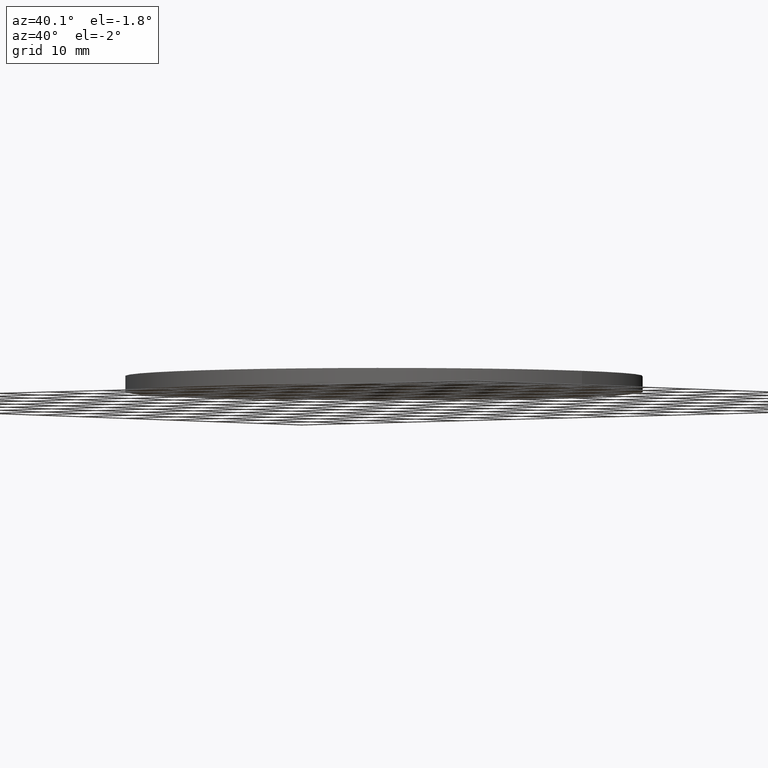
[diagram: clean part render]
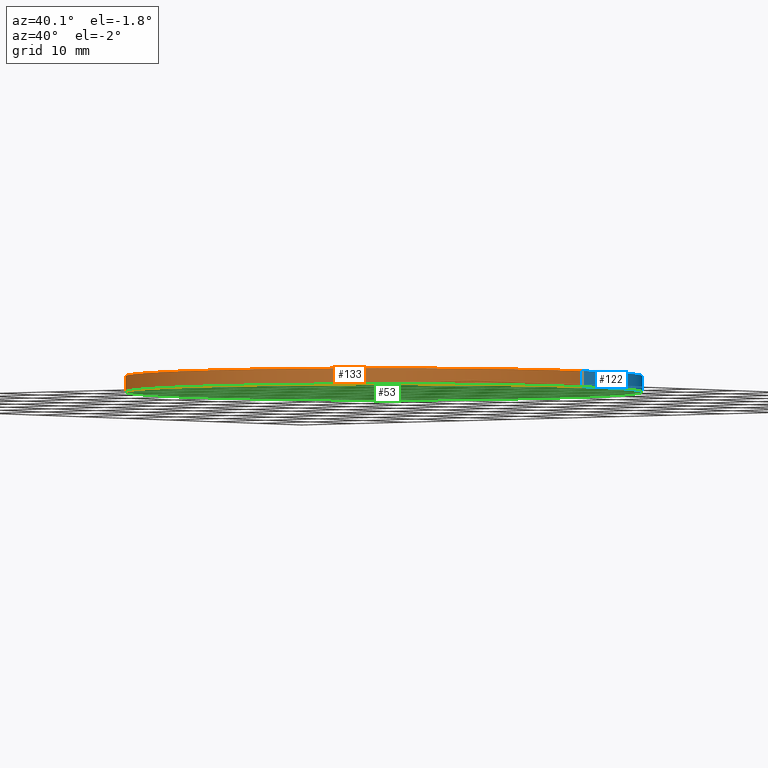
[diagram: same view with three faces highlighted in distinct colors, each labeled with its STEP entity id]
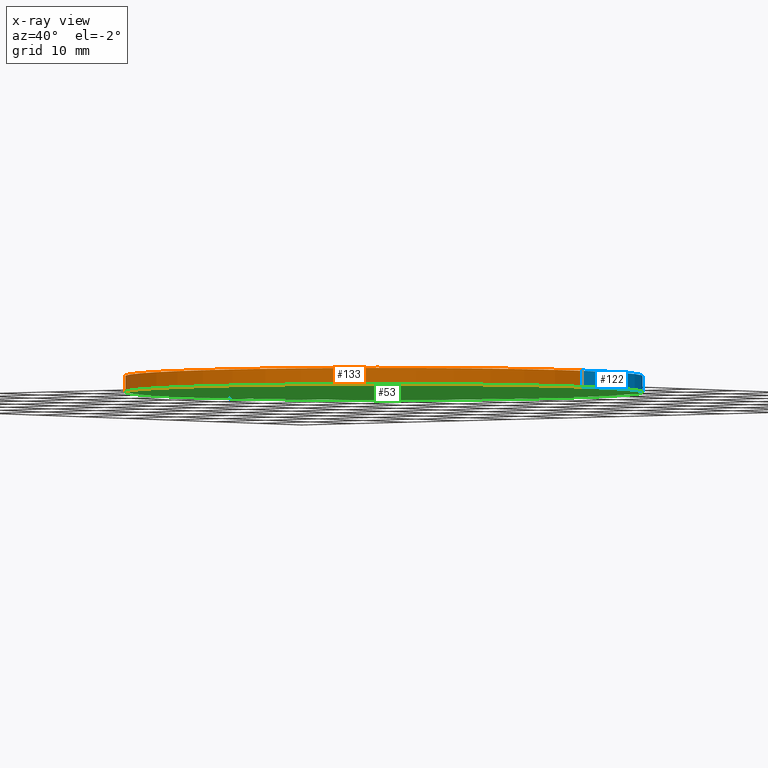
[diagram: x-ray of the same camera — body ghosted, the three highlighted faces saturated]
A machine part, auxiliary view with three faces highlighted in distinct colors.
The next image is the same camera in x-ray (body ghosted, the three faces saturated) — at least one of them is partly hidden behind the body in this view.
Their STEP definitions:

[orange] entity #133 — the highlighted cylindrical surface (partial cylindrical patch) has radius 37.5 mm, axis along (-0, -0, -1).
#1 = DIRECTION ( 'NONE',  ( -1.000000000000000000, 0.0000000000000000000, 0.0000000000000000000 ) ) ;
#2 = CARTESIAN_POINT ( 'NONE',  ( -42.95782393561467700, 0.0000000000000000000, 2.299999999999999800 ) ) ;
#6 = VECTOR ( 'NONE', #92, 1000.000000000000000 ) ;
#8 = DIRECTION ( 'NONE',  ( 0.0000000000000000000, 0.0000000000000000000, 1.000000000000000000 ) ) ;
#14 = CARTESIAN_POINT ( 'NONE',  ( -42.95782393561467700, 0.0000000000000000000, 0.0000000000000000000 ) ) ;
#20 = VERTEX_POINT ( 'NONE', #135 ) ;
#24 = CARTESIAN_POINT ( 'NONE',  ( -5.457823935614669600, 0.0000000000000000000, 0.0000000000000000000 ) ) ;
#25 = EDGE_CURVE ( 'NONE', #69, #20, #41, .T. ) ;
#33 = EDGE_LOOP ( 'NONE', ( #97, #66, #55, #137 ) ) ;
#35 = EDGE_CURVE ( 'NONE', #20, #89, #56, .T. ) ;
#36 = DIRECTION ( 'NONE',  ( -0.0000000000000000000, -0.0000000000000000000, -1.000000000000000000 ) ) ;
#41 = CIRCLE ( 'NONE', #113, 37.50000000000000700 ) ;
#42 = AXIS2_PLACEMENT_3D ( 'NONE', #24, #84, #93 ) ;
#52 = FACE_OUTER_BOUND ( 'NONE', #33, .T. ) ;
#55 = ORIENTED_EDGE ( 'NONE', *, *, #119, .T. ) ;
#56 = LINE ( 'NONE', #67, #6 ) ;
#66 = ORIENTED_EDGE ( 'NONE', *, *, #25, .F. ) ;
#67 = CARTESIAN_POINT ( 'NONE',  ( 32.04217606438533700, 4.592425496802575200E-015, 2.299999999999999800 ) ) ;
#69 = VERTEX_POINT ( 'NONE', #2 ) ;
#71 = DIRECTION ( 'NONE',  ( -0.0000000000000000000, -0.0000000000000000000, -1.000000000000000000 ) ) ;
#75 = AXIS2_PLACEMENT_3D ( 'NONE', #108, #36, #1 ) ;
#78 = VECTOR ( 'NONE', #71, 1000.000000000000000 ) ;
#80 = DIRECTION ( 'NONE',  ( 1.000000000000000000, 0.0000000000000000000, 0.0000000000000000000 ) ) ;
#84 = DIRECTION ( 'NONE',  ( 0.0000000000000000000, 0.0000000000000000000, 1.000000000000000000 ) ) ;
#87 = CIRCLE ( 'NONE', #42, 37.50000000000000700 ) ;
#89 = VERTEX_POINT ( 'NONE', #120 ) ;
#92 = DIRECTION ( 'NONE',  ( -0.0000000000000000000, -0.0000000000000000000, -1.000000000000000000 ) ) ;
#93 = DIRECTION ( 'NONE',  ( 1.000000000000000000, 0.0000000000000000000, 0.0000000000000000000 ) ) ;
#97 = ORIENTED_EDGE ( 'NONE', *, *, #35, .F. ) ;
#98 = CARTESIAN_POINT ( 'NONE',  ( -42.95782393561467700, 0.0000000000000000000, 2.299999999999999800 ) ) ;
#101 = EDGE_CURVE ( 'NONE', #116, #89, #87, .T. ) ;
#102 = CARTESIAN_POINT ( 'NONE',  ( -5.457823935614669600, 0.0000000000000000000, 2.299999999999999800 ) ) ;
#108 = CARTESIAN_POINT ( 'NONE',  ( -5.457823935614669600, 0.0000000000000000000, 2.299999999999999800 ) ) ;
#111 = LINE ( 'NONE', #98, #78 ) ;
#113 = AXIS2_PLACEMENT_3D ( 'NONE', #102, #8, #80 ) ;
#116 = VERTEX_POINT ( 'NONE', #14 ) ;
#119 = EDGE_CURVE ( 'NONE', #69, #116, #111, .T. ) ;
#120 = CARTESIAN_POINT ( 'NONE',  ( 32.04217606438533700, 4.592425496802575200E-015, 0.0000000000000000000 ) ) ;
#133 = ADVANCED_FACE ( 'NONE', ( #52 ), #139, .T. ) ;
#135 = CARTESIAN_POINT ( 'NONE',  ( 32.04217606438533700, 4.592425496802575200E-015, 2.299999999999999800 ) ) ;
#137 = ORIENTED_EDGE ( 'NONE', *, *, #101, .T. ) ;
#139 = CYLINDRICAL_SURFACE ( 'NONE', #75, 37.50000000000000700 ) ;

[blue] entity #122 — the highlighted cylindrical surface (partial cylindrical patch) has radius 37.5 mm, axis along (-0, -0, -1).
#2 = CARTESIAN_POINT ( 'NONE',  ( -42.95782393561467700, 0.0000000000000000000, 2.299999999999999800 ) ) ;
#6 = VECTOR ( 'NONE', #92, 1000.000000000000000 ) ;
#14 = CARTESIAN_POINT ( 'NONE',  ( -42.95782393561467700, 0.0000000000000000000, 0.0000000000000000000 ) ) ;
#15 = CARTESIAN_POINT ( 'NONE',  ( -5.457823935614669600, 0.0000000000000000000, 2.299999999999999800 ) ) ;
#18 = EDGE_CURVE ( 'NONE', #20, #69, #79, .T. ) ;
#20 = VERTEX_POINT ( 'NONE', #135 ) ;
#22 = DIRECTION ( 'NONE',  ( 1.000000000000000000, 0.0000000000000000000, 0.0000000000000000000 ) ) ;
#23 = AXIS2_PLACEMENT_3D ( 'NONE', #15, #88, #115 ) ;
#29 = ORIENTED_EDGE ( 'NONE', *, *, #18, .F. ) ;
#30 = CARTESIAN_POINT ( 'NONE',  ( -5.457823935614669600, 0.0000000000000000000, 0.0000000000000000000 ) ) ;
#35 = EDGE_CURVE ( 'NONE', #20, #89, #56, .T. ) ;
#47 = ORIENTED_EDGE ( 'NONE', *, *, #110, .T. ) ;
#50 = CIRCLE ( 'NONE', #60, 37.50000000000000700 ) ;
#56 = LINE ( 'NONE', #67, #6 ) ;
#60 = AXIS2_PLACEMENT_3D ( 'NONE', #30, #129, #22 ) ;
#67 = CARTESIAN_POINT ( 'NONE',  ( 32.04217606438533700, 4.592425496802575200E-015, 2.299999999999999800 ) ) ;
#69 = VERTEX_POINT ( 'NONE', #2 ) ;
#71 = DIRECTION ( 'NONE',  ( -0.0000000000000000000, -0.0000000000000000000, -1.000000000000000000 ) ) ;
#74 = ORIENTED_EDGE ( 'NONE', *, *, #119, .F. ) ;
#78 = VECTOR ( 'NONE', #71, 1000.000000000000000 ) ;
#79 = CIRCLE ( 'NONE', #23, 37.50000000000000700 ) ;
#81 = DIRECTION ( 'NONE',  ( -1.000000000000000000, 0.0000000000000000000, 0.0000000000000000000 ) ) ;
#82 = CARTESIAN_POINT ( 'NONE',  ( -5.457823935614669600, 0.0000000000000000000, 2.299999999999999800 ) ) ;
#85 = AXIS2_PLACEMENT_3D ( 'NONE', #82, #106, #81 ) ;
#88 = DIRECTION ( 'NONE',  ( 0.0000000000000000000, 0.0000000000000000000, 1.000000000000000000 ) ) ;
#89 = VERTEX_POINT ( 'NONE', #120 ) ;
#92 = DIRECTION ( 'NONE',  ( -0.0000000000000000000, -0.0000000000000000000, -1.000000000000000000 ) ) ;
#96 = ORIENTED_EDGE ( 'NONE', *, *, #35, .T. ) ;
#98 = CARTESIAN_POINT ( 'NONE',  ( -42.95782393561467700, 0.0000000000000000000, 2.299999999999999800 ) ) ;
#99 = CYLINDRICAL_SURFACE ( 'NONE', #85, 37.50000000000000700 ) ;
#106 = DIRECTION ( 'NONE',  ( -0.0000000000000000000, -0.0000000000000000000, -1.000000000000000000 ) ) ;
#110 = EDGE_CURVE ( 'NONE', #89, #116, #50, .T. ) ;
#111 = LINE ( 'NONE', #98, #78 ) ;
#114 = FACE_OUTER_BOUND ( 'NONE', #125, .T. ) ;
#115 = DIRECTION ( 'NONE',  ( 1.000000000000000000, 0.0000000000000000000, 0.0000000000000000000 ) ) ;
#116 = VERTEX_POINT ( 'NONE', #14 ) ;
#119 = EDGE_CURVE ( 'NONE', #69, #116, #111, .T. ) ;
#120 = CARTESIAN_POINT ( 'NONE',  ( 32.04217606438533700, 4.592425496802575200E-015, 0.0000000000000000000 ) ) ;
#122 = ADVANCED_FACE ( 'NONE', ( #114 ), #99, .T. ) ;
#125 = EDGE_LOOP ( 'NONE', ( #29, #96, #47, #74 ) ) ;
#129 = DIRECTION ( 'NONE',  ( 0.0000000000000000000, 0.0000000000000000000, 1.000000000000000000 ) ) ;
#135 = CARTESIAN_POINT ( 'NONE',  ( 32.04217606438533700, 4.592425496802575200E-015, 2.299999999999999800 ) ) ;

[green] entity #53 — the highlighted planar face has unit normal (0, 0, 1).
#4 = CARTESIAN_POINT ( 'NONE',  ( -5.457823935614669600, 0.0000000000000000000, 0.0000000000000000000 ) ) ;
#14 = CARTESIAN_POINT ( 'NONE',  ( -42.95782393561467700, 0.0000000000000000000, 0.0000000000000000000 ) ) ;
#22 = DIRECTION ( 'NONE',  ( 1.000000000000000000, 0.0000000000000000000, 0.0000000000000000000 ) ) ;
#24 = CARTESIAN_POINT ( 'NONE',  ( -5.457823935614669600, 0.0000000000000000000, 0.0000000000000000000 ) ) ;
#30 = CARTESIAN_POINT ( 'NONE',  ( -5.457823935614669600, 0.0000000000000000000, 0.0000000000000000000 ) ) ;
#42 = AXIS2_PLACEMENT_3D ( 'NONE', #24, #84, #93 ) ;
#43 = FACE_OUTER_BOUND ( 'NONE', #61, .T. ) ;
#50 = CIRCLE ( 'NONE', #60, 37.50000000000000700 ) ;
#53 = ADVANCED_FACE ( 'NONE', ( #43 ), #64, .F. ) ;
#60 = AXIS2_PLACEMENT_3D ( 'NONE', #30, #129, #22 ) ;
#61 = EDGE_LOOP ( 'NONE', ( #86, #107 ) ) ;
#64 = PLANE ( 'NONE',  #126 ) ;
#83 = DIRECTION ( 'NONE',  ( 1.000000000000000000, 0.0000000000000000000, -0.0000000000000000000 ) ) ;
#84 = DIRECTION ( 'NONE',  ( 0.0000000000000000000, 0.0000000000000000000, 1.000000000000000000 ) ) ;
#86 = ORIENTED_EDGE ( 'NONE', *, *, #101, .F. ) ;
#87 = CIRCLE ( 'NONE', #42, 37.50000000000000700 ) ;
#89 = VERTEX_POINT ( 'NONE', #120 ) ;
#93 = DIRECTION ( 'NONE',  ( 1.000000000000000000, 0.0000000000000000000, 0.0000000000000000000 ) ) ;
#101 = EDGE_CURVE ( 'NONE', #116, #89, #87, .T. ) ;
#107 = ORIENTED_EDGE ( 'NONE', *, *, #110, .F. ) ;
#110 = EDGE_CURVE ( 'NONE', #89, #116, #50, .T. ) ;
#116 = VERTEX_POINT ( 'NONE', #14 ) ;
#118 = DIRECTION ( 'NONE',  ( 0.0000000000000000000, 0.0000000000000000000, 1.000000000000000000 ) ) ;
#120 = CARTESIAN_POINT ( 'NONE',  ( 32.04217606438533700, 4.592425496802575200E-015, 0.0000000000000000000 ) ) ;
#126 = AXIS2_PLACEMENT_3D ( 'NONE', #4, #118, #83 ) ;
#129 = DIRECTION ( 'NONE',  ( 0.0000000000000000000, 0.0000000000000000000, 1.000000000000000000 ) ) ;